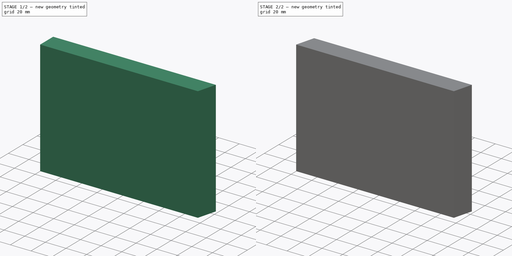
[diagram: build sequence overview — one tinted view per stage of 2, left to right]
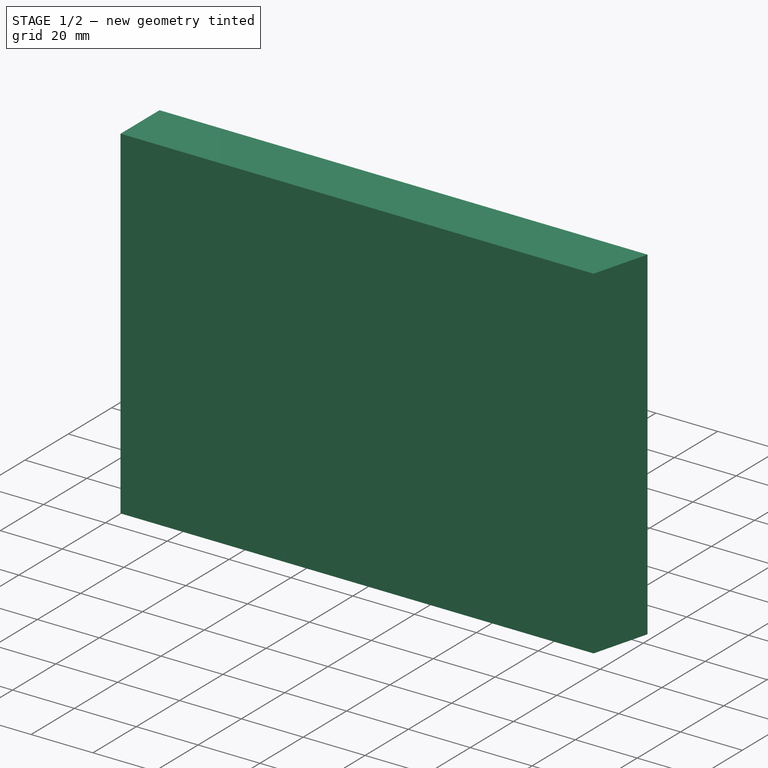
[diagram: stage 1 of 2 — iso view after this stage's code; geometry added in this stage tinted green]
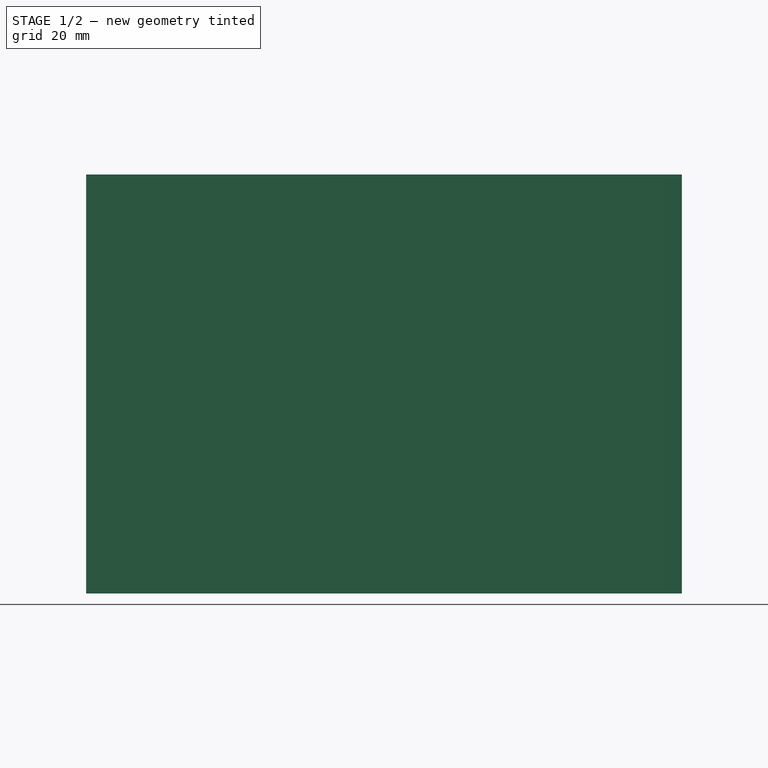
[diagram: stage 1 of 2 — front view after this stage's code; geometry added in this stage tinted green]
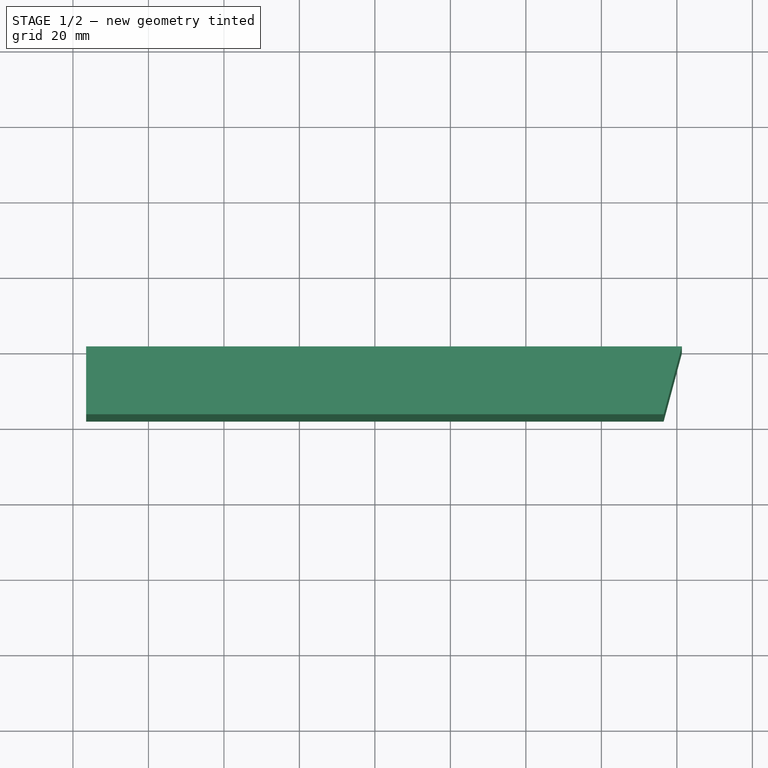
[diagram: stage 1 of 2 — top view after this stage's code; geometry added in this stage tinted green]
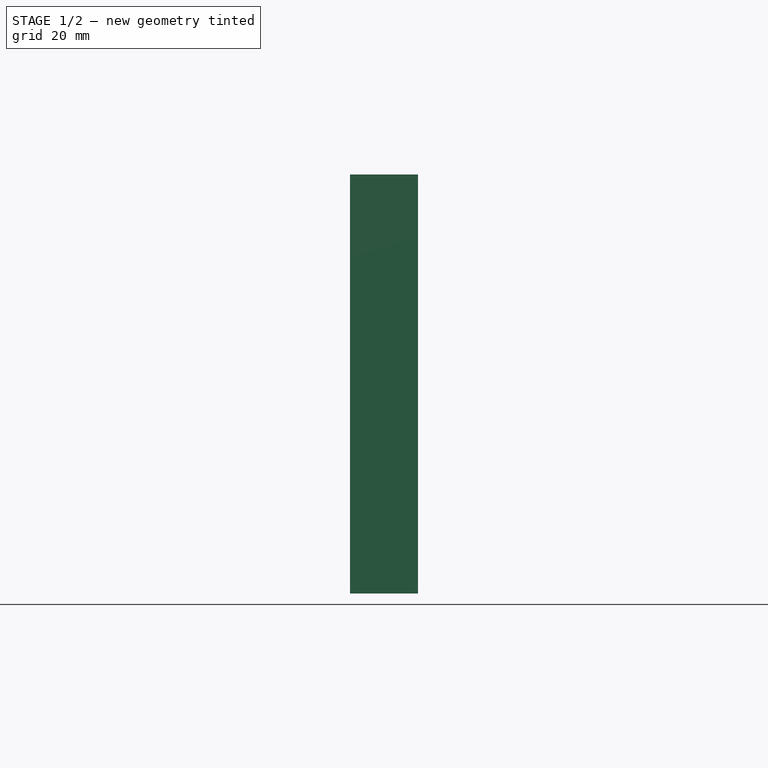
[diagram: stage 1 of 2 — right view after this stage's code; geometry added in this stage tinted green]
FCSTD DOCUMENT  (FreeCAD 0.17R13541 (Git))
Label: FaceAvantGaucheBassReflex
License: All rights reserved
LicenseURL: http://en.wikipedia.org/wiki/All_rights_reserved
objects: PartDesign::Draft×2, Sketcher::SketchObject×1, PartDesign::Pad×1, PartDesign::Body×1
note: 6 computed .brp shape members not serialized (recipe doc carries the construction recipe); baked Part::Feature solids carry a one-line shape summary decoded from their .brp

FEATURE [Sketcher::SketchObject] Sketch
  MapMode = 5
  Placement = pos=(0,0,0) rot=(1,0,0;1.5708rad)
  Support = -> [XZ_Plane]
  sketch-geometry (6):
    g0: LineSegment StartX=-76.5 StartY=55.5 StartZ=0 EndX=76.5 EndY=55.5 EndZ=0
    g1: LineSegment StartX=76.5 StartY=55.5 StartZ=0 EndX=76.5 EndY=-55.5 EndZ=0
    g2: LineSegment StartX=76.5 StartY=-55.5 StartZ=0 EndX=-76.5 EndY=-55.5 EndZ=0
    g3: LineSegment StartX=-76.5 StartY=-55.5 StartZ=0 EndX=-76.5 EndY=55.5 EndZ=0
    g4: LineSegment [constr] StartX=-76.5 StartY=55.5 StartZ=0 EndX=76.5 EndY=-55.5 EndZ=0
    g5: LineSegment [constr] StartX=76.5 StartY=55.5 StartZ=0 EndX=-76.5 EndY=-55.5 EndZ=0
  constraints (16):
    c: Coincident(g0,g1)
    c: Coincident(g1,g2)
    c: Coincident(g2,g3)
    c: Coincident(g3,g0)
    c: Horizontal(g0)
    c: Horizontal(g2)
    c: Vertical(g1)
    c: Vertical(g3)
    c: Coincident(g4,g0)
    c: Coincident(g4,g1)
    c: Coincident(g5,g0)
    c: Coincident(g5,g2)
    c: PointOnObject(g-1,g4)
    c: PointOnObject(g-1,g5)
    c: DistanceX(g0,g0) = 153  'Largeur tier a angle 15'
    c: DistanceY(g1,g1) = 111  'Hauteur e moins epaisseur bois'
FEATURE [PartDesign::Pad] Pad
  Length = 18
  Length2 = 100
  Placement = pos=(0,0,0) rot=(1,0,0;1.5708rad)
  Profile = -> Sketch
  Type = 0
FEATURE [PartDesign::Draft] Draft
  Angle = 15
  Base = -> Pad [Face2]
  BaseFeature = -> Pad
  NeutralPlane = -> Pad [Face6]
  Placement = pos=(0,0,0) rot=(1,0,0;1.5708rad)
  PullDirection = -> Pad [Edge2]
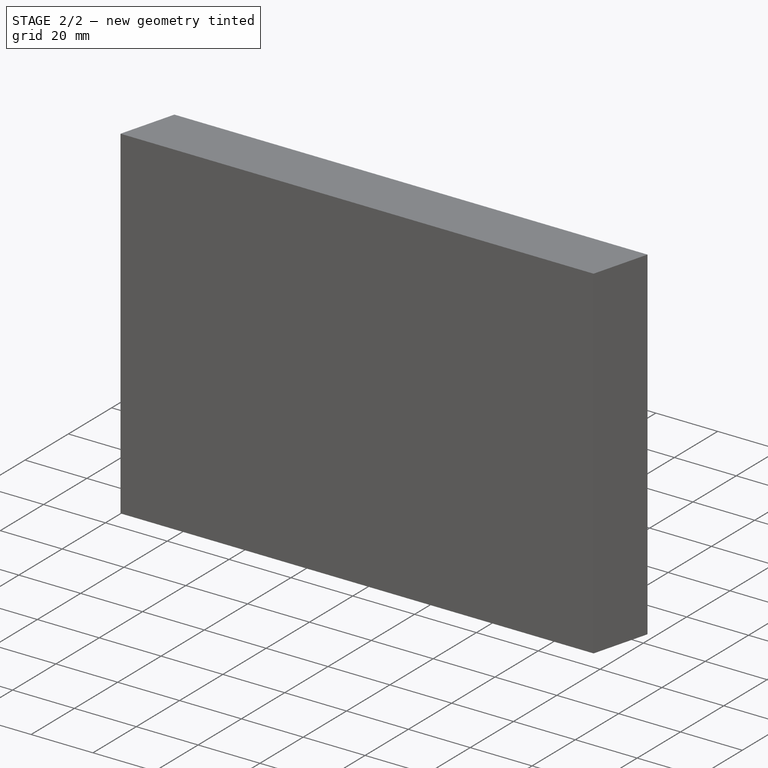
[diagram: stage 2 of 2 — iso view after this stage's code; geometry added in this stage tinted green]
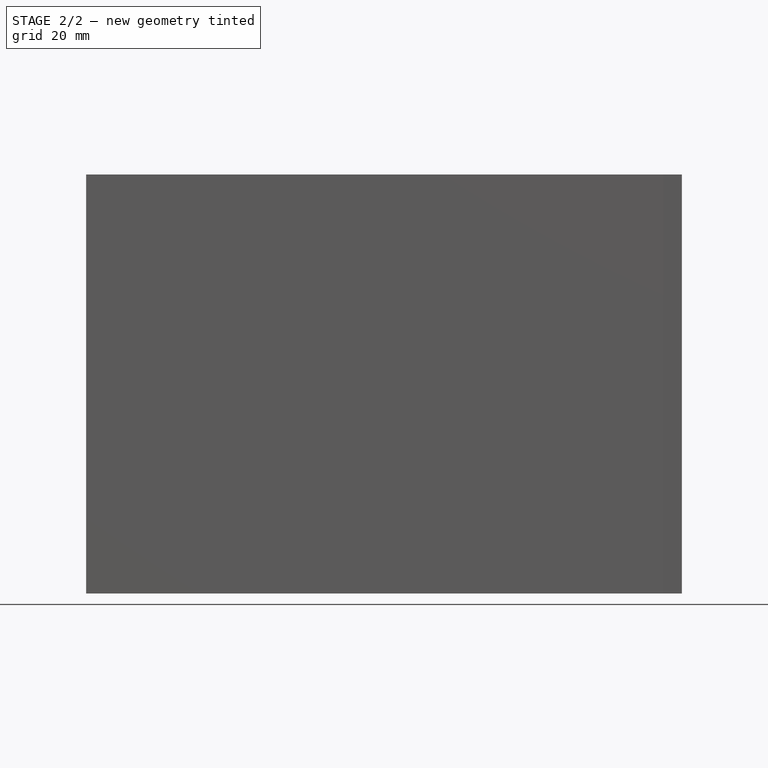
[diagram: stage 2 of 2 — front view after this stage's code; geometry added in this stage tinted green]
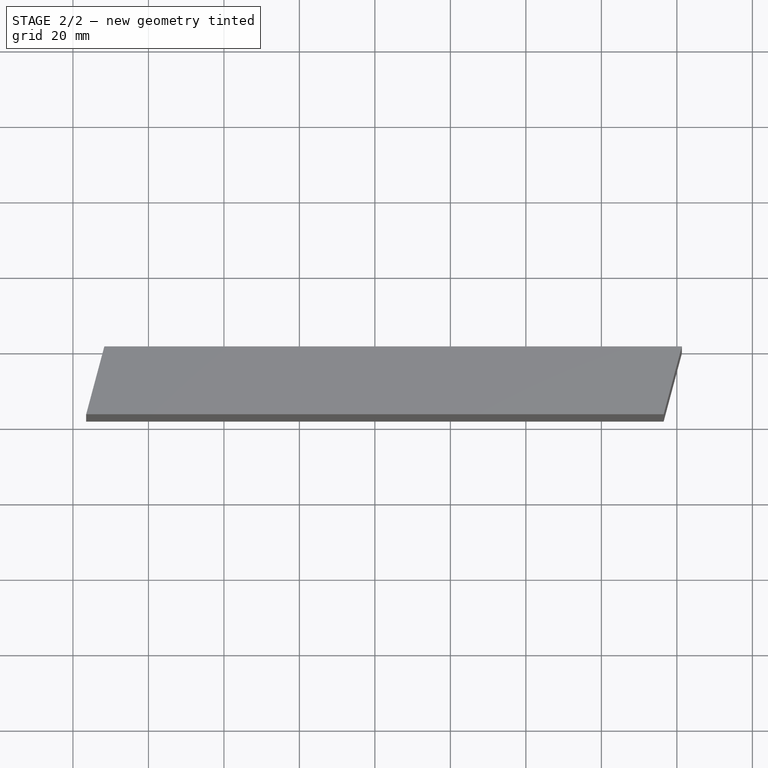
[diagram: stage 2 of 2 — top view after this stage's code; geometry added in this stage tinted green]
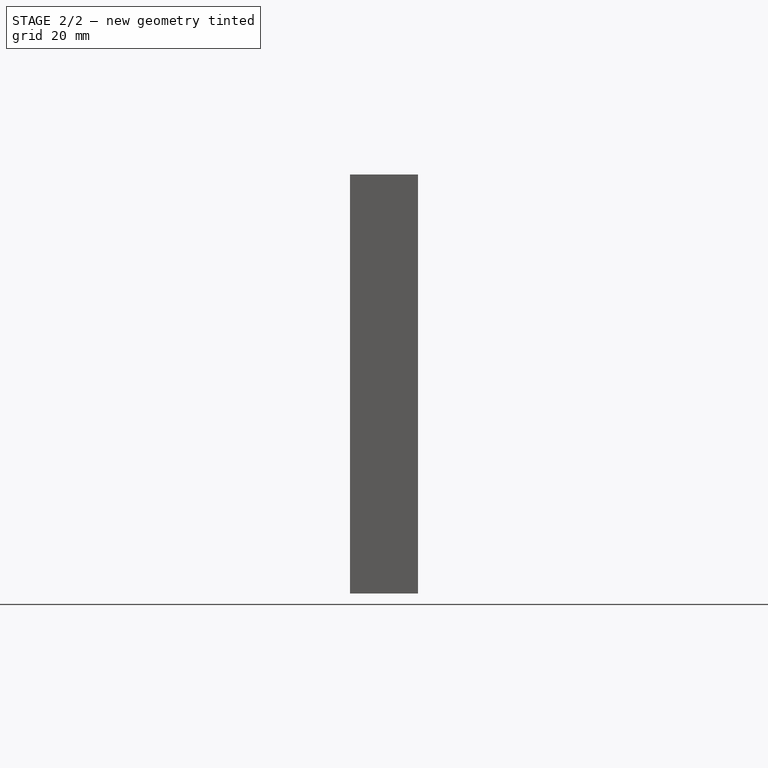
[diagram: stage 2 of 2 — right view after this stage's code; geometry added in this stage tinted green]
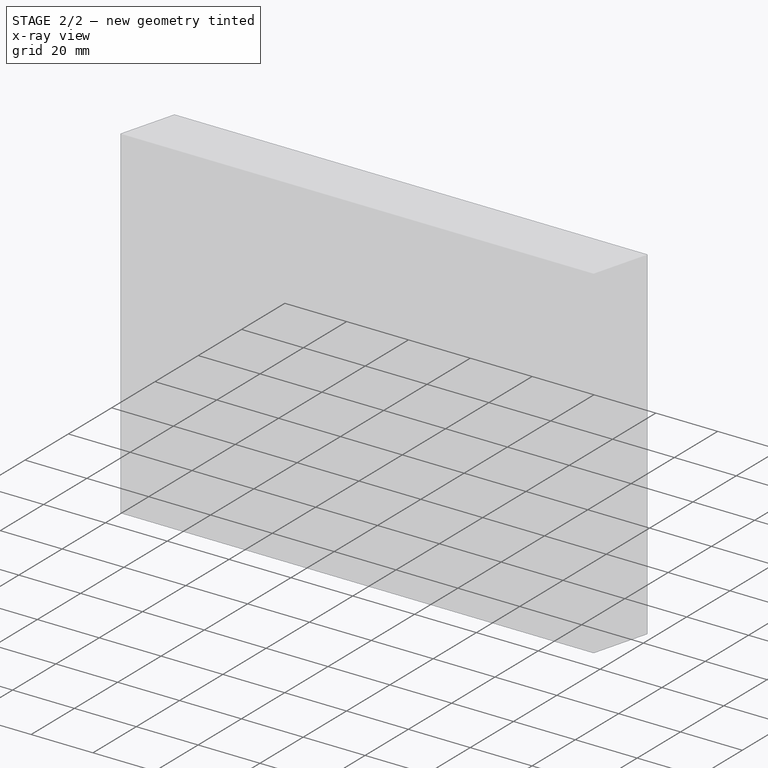
[diagram: stage 2 of 2 — x-ray composite at the iso view; earlier geometry ghosted, this stage's added geometry solid]
FEATURE [PartDesign::Draft] Draft001
  Angle = 15
  Base = -> Draft [Face4]
  BaseFeature = -> Draft
  NeutralPlane = -> Draft [Face6]
  Placement = pos=(0,0,0) rot=(1,0,0;1.5708rad)
  PullDirection = -> Draft [Edge1]
  Reversed = true
FEATURE [PartDesign::Body] Body  label="Face avant gauche Bass Relex"
  Group = -> [Sketch,Pad,Draft,Draft001]
  Origin = -> Origin
  Tip = -> Draft001
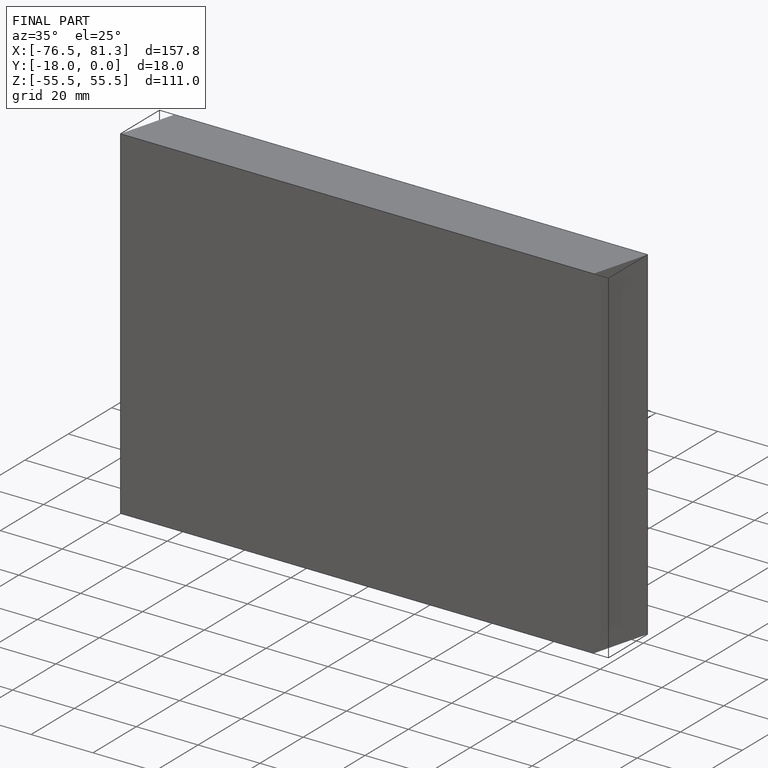
[diagram: finished part — iso view with bounding-box wireframe]
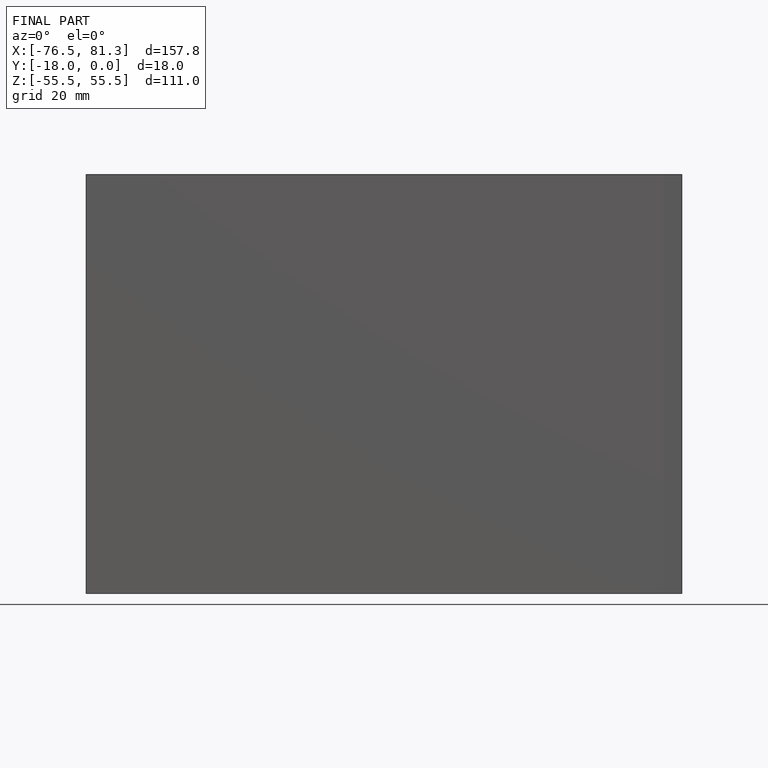
[diagram: finished part — front view with bounding-box wireframe]
